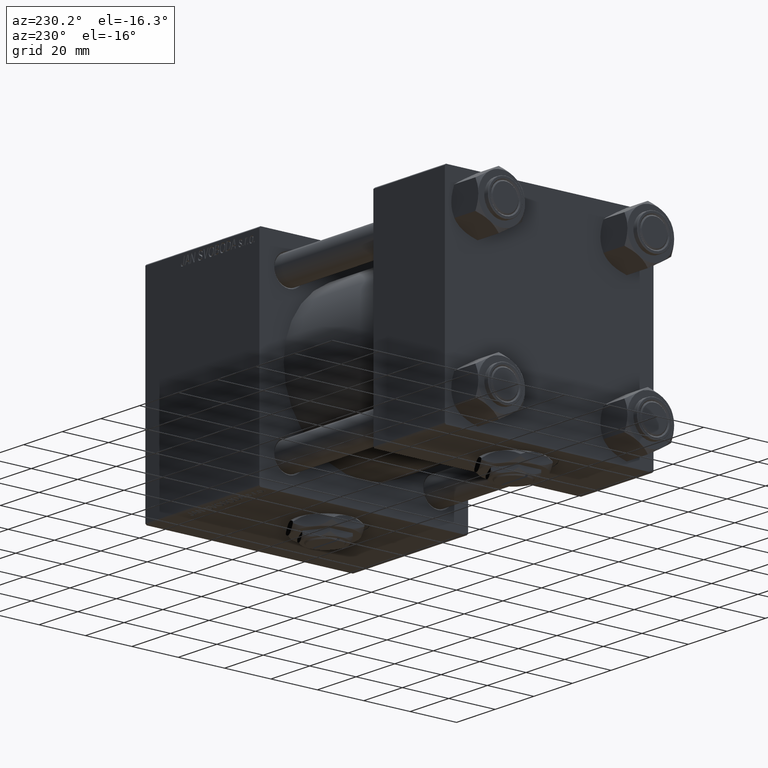
[diagram: clean part render]
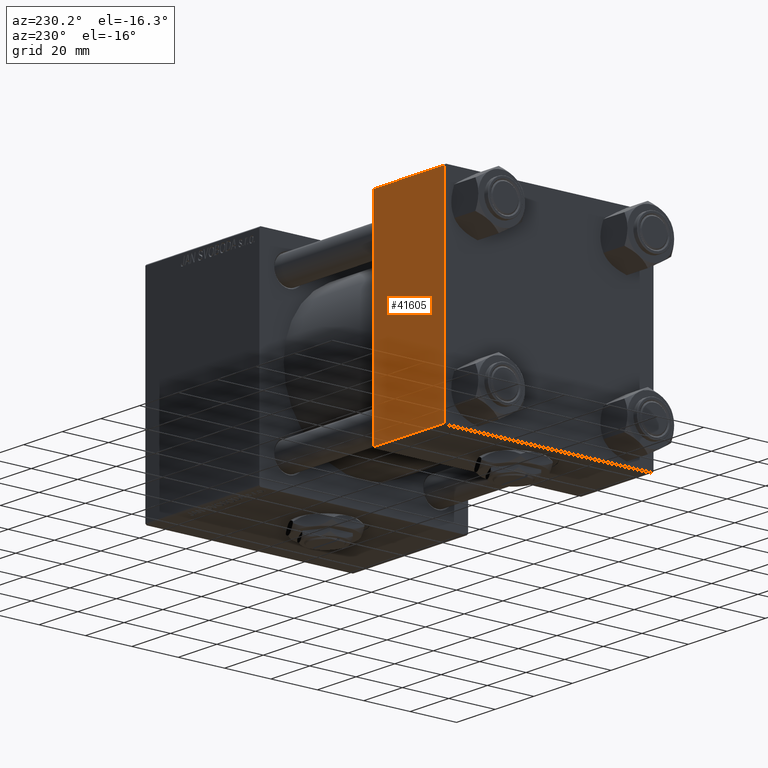
[diagram: same view with one face highlighted and labeled with its STEP entity id]
A machine part, auxiliary view. The second image highlights one B-rep face of the part: STEP entity #41605.
In plain terms, the highlighted planar face has unit normal (0, 1, 0).
Its self-contained STEP definition (entity closure, byte-faithful):
#2817 = DIRECTION ( 'NONE',  ( 0.000000000000000000, -0.000000000000000000, 1.000000000000000000 ) ) ;
#3065 = CARTESIAN_POINT ( 'NONE',  ( 0.000000000000000000, 44.99999999999998579, 44.50000000000001421 ) ) ;
#6386 = CARTESIAN_POINT ( 'NONE',  ( 37.00000000000000000, 44.99999999999998579, 44.50000000000001421 ) ) ;
#6941 = EDGE_CURVE ( 'NONE', #51839, #25367, #10518, .T. ) ;
#7317 = VECTOR ( 'NONE', #19228, 1000.000000000000000 ) ;
#8309 = EDGE_CURVE ( 'NONE', #43773, #51839, #52030, .T. ) ;
#10238 = CARTESIAN_POINT ( 'NONE',  ( 37.00000000000000000, 44.99999999999998579, 45.00000000000001421 ) ) ;
#10374 = VERTEX_POINT ( 'NONE', #3065 ) ;
#10518 = LINE ( 'NONE', #14992, #46384 ) ;
#12882 = DIRECTION ( 'NONE',  ( 0.000000000000000000, 0.000000000000000000, -1.000000000000000000 ) ) ;
#14992 = CARTESIAN_POINT ( 'NONE',  ( 37.00000000000000000, 44.99999999999998579, -44.49999999999998579 ) ) ;
#15183 = CARTESIAN_POINT ( 'NONE',  ( 0.000000000000000000, 44.99999999999998579, -44.49999999999995737 ) ) ;
#15968 = ORIENTED_EDGE ( 'NONE', *, *, #6941, .T. ) ;
#16734 = VECTOR ( 'NONE', #51308, 1000.000000000000000 ) ;
#18322 = ORIENTED_EDGE ( 'NONE', *, *, #43714, .F. ) ;
#19228 = DIRECTION ( 'NONE',  ( 0.000000000000000000, 0.000000000000000000, -1.000000000000000000 ) ) ;
#25367 = VERTEX_POINT ( 'NONE', #15183 ) ;
#26358 = DIRECTION ( 'NONE',  ( -0.000000000000000000, 1.000000000000000000, 0.000000000000000000 ) ) ;
#26383 = DIRECTION ( 'NONE',  ( -1.000000000000000000, 0.000000000000000000, 0.000000000000000000 ) ) ;
#28097 = ORIENTED_EDGE ( 'NONE', *, *, #51672, .T. ) ;
#30321 = FACE_OUTER_BOUND ( 'NONE', #40589, .T. ) ;
#31106 = CARTESIAN_POINT ( 'NONE',  ( 37.00000000000000000, 44.99999999999998579, 44.50000000000001421 ) ) ;
#31636 = LINE ( 'NONE', #47514, #7317 ) ;
#32717 = CARTESIAN_POINT ( 'NONE',  ( 37.00000000000000000, 44.99999999999998579, 45.00000000000001421 ) ) ;
#32724 = ORIENTED_EDGE ( 'NONE', *, *, #8309, .T. ) ;
#40589 = EDGE_LOOP ( 'NONE', ( #32724, #15968, #18322, #28097 ) ) ;
#41605 = ADVANCED_FACE ( 'NONE', ( #30321 ), #46460, .T. ) ;
#43068 = VECTOR ( 'NONE', #12882, 1000.000000000000000 ) ;
#43714 = EDGE_CURVE ( 'NONE', #10374, #25367, #31636, .T. ) ;
#43773 = VERTEX_POINT ( 'NONE', #31106 ) ;
#45251 = AXIS2_PLACEMENT_3D ( 'NONE', #10238, #26358, #2817 ) ;
#46384 = VECTOR ( 'NONE', #26383, 1000.000000000000000 ) ;
#46460 = PLANE ( 'NONE',  #45251 ) ;
#47514 = CARTESIAN_POINT ( 'NONE',  ( 0.000000000000000000, 44.99999999999998579, 45.00000000000001421 ) ) ;
#51045 = LINE ( 'NONE', #6386, #16734 ) ;
#51308 = DIRECTION ( 'NONE',  ( 1.000000000000000000, 0.000000000000000000, 0.000000000000000000 ) ) ;
#51672 = EDGE_CURVE ( 'NONE', #10374, #43773, #51045, .T. ) ;
#51839 = VERTEX_POINT ( 'NONE', #1341 ) ;
#52030 = LINE ( 'NONE', #32717, #43068 ) ;
#1341 = CARTESIAN_POINT ( 'NONE',  ( 37.00000000000000000, 44.99999999999998579, -44.49999999999995737 ) ) ;